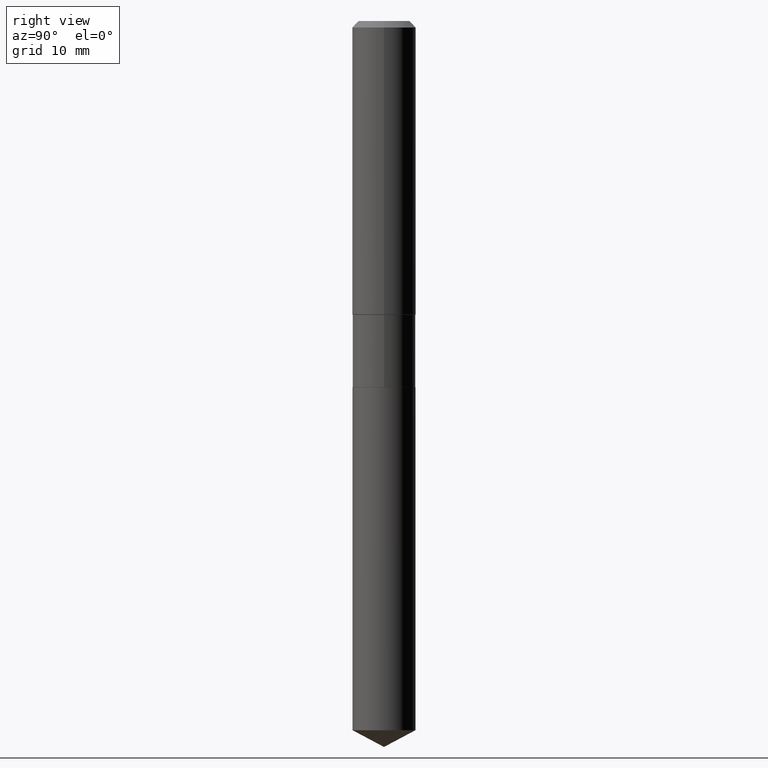
[diagram: clean part render]
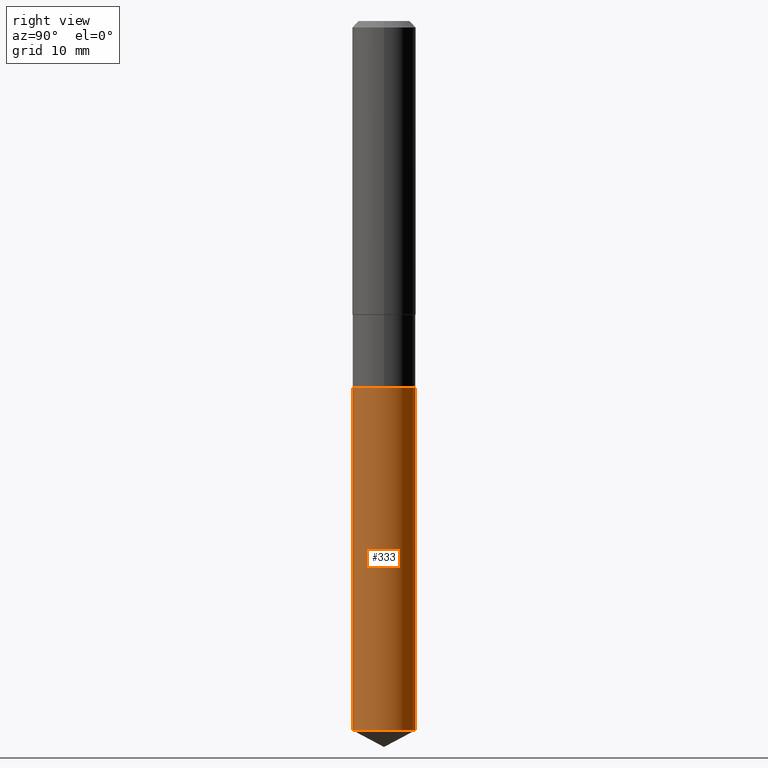
[diagram: same view with one face highlighted and labeled with its STEP entity id]
A machine part, right view. The second image highlights one B-rep face of the part: STEP entity #333.
In plain terms, the highlighted cylindrical surface (edge-blend (fillet) strip) has radius 3.9497 mm, axis along (-0, 0, 1).
Its self-contained STEP definition (entity closure, byte-faithful):
#6 = CARTESIAN_POINT ( 'NONE',  ( 4.419206679657160853E-29, -6.309455927423449056E-15, -1.807100000000000151 ) ) ;
#21 = AXIS2_PLACEMENT_3D ( 'NONE', #374, #76, #421 ) ;
#38 = CYLINDRICAL_SURFACE ( 'NONE', #21, 0.1554999999999999993 ) ;
#42 = ORIENTED_EDGE ( 'NONE', *, *, #286, .T. ) ;
#44 = FACE_OUTER_BOUND ( 'NONE', #415, .T. ) ;
#66 = DIRECTION ( 'NONE',  ( -2.445453521362927048E-29, 3.491503227578508075E-15, 1.000000000000000000 ) ) ;
#76 = DIRECTION ( 'NONE',  ( -2.445453521362927048E-29, 3.491503227578508075E-15, 1.000000000000000000 ) ) ;
#91 = EDGE_CURVE ( 'NONE', #376, #285, #102, .T. ) ;
#102 = LINE ( 'NONE', #253, #489 ) ;
#123 = DIRECTION ( 'NONE',  ( -6.982962677686265133E-15, -1.000000000000000000, 3.513630860018345064E-15 ) ) ;
#133 = VERTEX_POINT ( 'NONE', #327 ) ;
#166 = DIRECTION ( 'NONE',  ( -2.445453521362927048E-29, 3.491503227578508075E-15, 1.000000000000000000 ) ) ;
#170 = EDGE_CURVE ( 'NONE', #133, #309, #296, .T. ) ;
#179 = AXIS2_PLACEMENT_3D ( 'NONE', #404, #66, #123 ) ;
#183 = DIRECTION ( 'NONE',  ( -2.445453521362927048E-29, 3.491503227578508075E-15, 1.000000000000000000 ) ) ;
#187 = CIRCLE ( 'NONE', #377, 0.1554999999999999993 ) ;
#190 = CARTESIAN_POINT ( 'NONE',  ( 1.104893954107041376E-15, 0.1554999999999936711, -1.807100000000000817 ) ) ;
#199 = ORIENTED_EDGE ( 'NONE', *, *, #91, .F. ) ;
#250 = ORIENTED_EDGE ( 'NONE', *, *, #313, .F. ) ;
#253 = CARTESIAN_POINT ( 'NONE',  ( -1.085850696380170092E-15, -0.1555000000000062998, -1.807099999999999707 ) ) ;
#254 = CARTESIAN_POINT ( 'NONE',  ( -1.085850696380170092E-15, -0.1555000000000062998, -1.807099999999999707 ) ) ;
#270 = VECTOR ( 'NONE', #183, 39.37007874015748143 ) ;
#272 = DIRECTION ( 'NONE',  ( -6.982962677686265133E-15, -1.000000000000000000, 3.513630860018345064E-15 ) ) ;
#285 = VERTEX_POINT ( 'NONE', #254 ) ;
#286 = EDGE_CURVE ( 'NONE', #376, #133, #293, .T. ) ;
#293 = CIRCLE ( 'NONE', #179, 0.1554999999999999993 ) ;
#296 = LINE ( 'NONE', #407, #270 ) ;
#309 = VERTEX_POINT ( 'NONE', #190 ) ;
#313 = EDGE_CURVE ( 'NONE', #285, #309, #187, .T. ) ;
#327 = CARTESIAN_POINT ( 'NONE',  ( 1.104893954107041376E-15, 0.1554999999999877869, -3.500019183376640530 ) ) ;
#333 = ADVANCED_FACE ( 'NONE', ( #44 ), #38, .T. ) ;
#352 = ORIENTED_EDGE ( 'NONE', *, *, #170, .T. ) ;
#374 = CARTESIAN_POINT ( 'NONE',  ( 4.419206679657160853E-29, -6.309455927423449056E-15, -1.807100000000000151 ) ) ;
#376 = VERTEX_POINT ( 'NONE', #417 ) ;
#377 = AXIS2_PLACEMENT_3D ( 'NONE', #6, #456, #272 ) ;
#404 = CARTESIAN_POINT ( 'NONE',  ( 8.559161858028415094E-29, -1.222028872021255922E-14, -3.500019183376640086 ) ) ;
#407 = CARTESIAN_POINT ( 'NONE',  ( 1.104893954106999566E-15, 0.1554999999999936711, -1.807100000000000817 ) ) ;
#415 = EDGE_LOOP ( 'NONE', ( #42, #352, #250, #199 ) ) ;
#417 = CARTESIAN_POINT ( 'NONE',  ( -1.085850696380128874E-15, -0.1555000000000122118, -3.500019183376639642 ) ) ;
#421 = DIRECTION ( 'NONE',  ( -6.982962677686265133E-15, -1.000000000000000000, 3.513630860018345064E-15 ) ) ;
#456 = DIRECTION ( 'NONE',  ( -2.445453521362927048E-29, 3.491503227578508075E-15, 1.000000000000000000 ) ) ;
#489 = VECTOR ( 'NONE', #166, 39.37007874015748143 ) ;